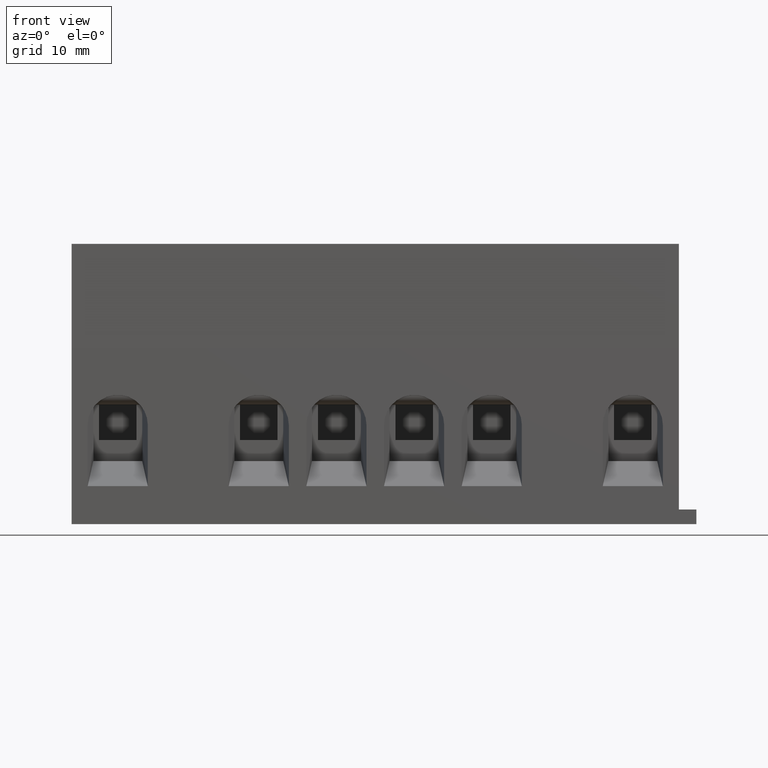
[diagram: clean part render]
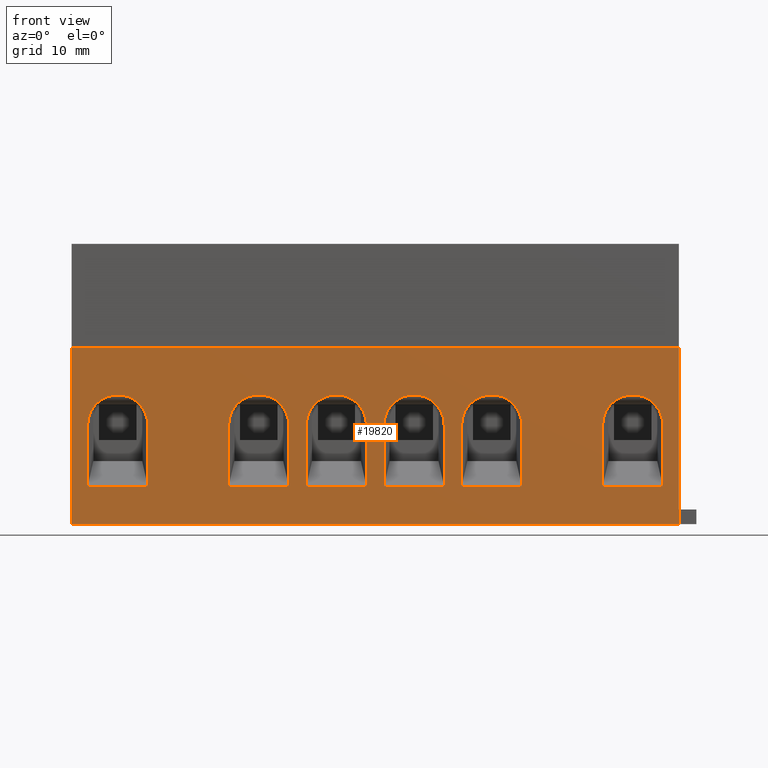
[diagram: same view with one face highlighted and labeled with its STEP entity id]
A machine part, front view. The second image highlights one B-rep face of the part: STEP entity #19820.
In plain terms, the highlighted planar face has unit normal (0, 1, 0).
Its self-contained STEP definition (entity closure, byte-faithful):
#10090=CARTESIAN_POINT('',(-110.632337741337,-187.476755845654,
-2.5371653489259E-7));
#10100=VERTEX_POINT('',#10090);
#10130=CARTESIAN_POINT('',(-113.207337741337,-187.476755845654,
-2.53716533116233E-7));
#10140=DIRECTION('',(0.,0.,1.));
#10150=DIRECTION('',(-1.,0.,0.));
#10160=AXIS2_PLACEMENT_3D('',#10130,#10140,#10150);
#10170=CIRCLE('',#10160,2.57499999999999);
#10180=CARTESIAN_POINT('',(-115.782337741337,-187.476755845654,
-2.53716529563519E-7));
#10190=VERTEX_POINT('',#10180);
#10200=EDGE_CURVE('',#10100,#10190,#10170,.T.);
#11400=CARTESIAN_POINT('',(-115.782337786074,-193.978083115857,
-2.53716528675341E-7));
#11410=DIRECTION('',(-5.00643972648559E-32,-1.,9.86076131526265E-32));
#11420=VECTOR('',#11410,1.);
#11430=LINE('',#11400,#11420);
#11440=CARTESIAN_POINT('',(-115.782337786074,-192.725760003181,
-2.53716528675341E-7));
#11450=VERTEX_POINT('',#11440);
#11460=EDGE_CURVE('',#10190,#11450,#11430,.T.);
#17130=CARTESIAN_POINT('',(-110.6323376966,-192.725759999409,
-2.53716534004411E-7));
#17140=VERTEX_POINT('',#17130);
#17170=CARTESIAN_POINT('',(-110.6323376966,-193.978083115857,
-2.53716534004411E-7));
#17180=DIRECTION('',(5.00643972648559E-32,-1.,9.86076131526265E-32));
#17190=VECTOR('',#17180,1.);
#17200=LINE('',#17170,#17190);
#17210=EDGE_CURVE('',#10100,#17140,#17200,.T.);
#17380=CARTESIAN_POINT('',(-117.157337741337,-192.725760003181,
-2.53716536668946E-7));
#17390=DIRECTION('',(1.,-3.31166725986915E-17,0.));
#17400=VECTOR('',#17390,1.);
#17410=LINE('',#17380,#17400);
#17420=EDGE_CURVE('',#11450,#17140,#17410,.T.);
#17620=CARTESIAN_POINT('',(-117.482337741337,-195.978083115857,
-2.5371653489259E-7));
#17630=DIRECTION('',(-0.,0.,1.));
#17640=DIRECTION('',(0.,-1.,0.));
#17650=AXIS2_PLACEMENT_3D('',#17620,#17630,#17640);
#17660=PLANE('',#17650);
#17670=CARTESIAN_POINT('',(-109.132337786074,-193.978083115857,
-2.53716534004411E-7));
#17680=DIRECTION('',(0.,1.,9.86076131526265E-32));
#17690=VECTOR('',#17680,1.);
#17700=LINE('',#17670,#17690);
#17710=CARTESIAN_POINT('',(-109.132337786074,-192.725760003181,
-2.53716536668946E-7));
#17720=VERTEX_POINT('',#17710);
#17730=CARTESIAN_POINT('',(-109.132337741337,-187.476755845654,
-2.5371653489259E-7));
#17740=VERTEX_POINT('',#17730);
#17750=EDGE_CURVE('',#17720,#17740,#17700,.T.);
#17760=ORIENTED_EDGE('',*,*,#17750,.F.);
#17770=CARTESIAN_POINT('',(-106.557337741337,-187.476755845654,
-2.53716533116233E-7));
#17780=DIRECTION('',(0.,0.,1.));
#17790=DIRECTION('',(-1.,0.,0.));
#17800=AXIS2_PLACEMENT_3D('',#17770,#17780,#17790);
#17810=CIRCLE('',#17800,2.57499999999999);
#17820=CARTESIAN_POINT('',(-103.982337741337,-187.476755845654,
-2.5371653489259E-7));
#17830=VERTEX_POINT('',#17820);
#17840=EDGE_CURVE('',#17830,#17740,#17810,.T.);
#17850=ORIENTED_EDGE('',*,*,#17840,.T.);
#17860=CARTESIAN_POINT('',(-103.9823376966,-193.978083115857,
-2.5371653489259E-7));
#17870=DIRECTION('',(0.,1.,0.));
#17880=VECTOR('',#17870,1.);
#17890=LINE('',#17860,#17880);
#17900=CARTESIAN_POINT('',(-103.9823376966,-192.725759999409,
-2.5371653489259E-7));
#17910=VERTEX_POINT('',#17900);
#17920=EDGE_CURVE('',#17910,#17830,#17890,.T.);
#17930=ORIENTED_EDGE('',*,*,#17920,.T.);
#17940=CARTESIAN_POINT('',(-110.507337741337,-192.725760003181,
-2.53716536668946E-7));
#17950=DIRECTION('',(1.,-3.31166725986915E-17,0.));
#17960=VECTOR('',#17950,1.);
#17970=LINE('',#17940,#17960);
#17980=EDGE_CURVE('',#17720,#17910,#17970,.T.);
#17990=ORIENTED_EDGE('',*,*,#17980,.T.);
#18000=EDGE_LOOP('',(#17990,#17930,#17850,#17760));
#18010=FACE_BOUND('',#18000,.T.);
#18020=CARTESIAN_POINT('',(-83.8823377413369,-193.978083115857,
1.4210854715202E-14));
#18030=DIRECTION('',(0.,1.,0.));
#18040=VECTOR('',#18030,1.);
#18050=LINE('',#18020,#18040);
#18060=CARTESIAN_POINT('',(-83.8823377413369,-195.978083115857,
-2.5371653489259E-7));
#18070=VERTEX_POINT('',#18060);
#18080=CARTESIAN_POINT('',(-83.8823377413369,-180.885783021568,
-3.86277676511781E-11));
#18090=VERTEX_POINT('',#18080);
#18100=EDGE_CURVE('',#18070,#18090,#18050,.T.);
#18110=ORIENTED_EDGE('',*,*,#18100,.F.);
#18120=CARTESIAN_POINT('',(-117.482337741337,-180.88578301714,
1.24344978758018E-14));
#18130=DIRECTION('',(1.,0.,0.));
#18140=VECTOR('',#18130,1.);
#18150=LINE('',#18120,#18140);
#18160=CARTESIAN_POINT('',(-135.882337741337,-180.88578301714,
-2.53716529563519E-7));
#18170=VERTEX_POINT('',#18160);
#18180=EDGE_CURVE('',#18170,#18090,#18150,.T.);
#18190=ORIENTED_EDGE('',*,*,#18180,.T.);
#18200=CARTESIAN_POINT('',(-135.882337741337,-193.978083115857,
1.95399252334028E-14));
#18210=DIRECTION('',(0.,1.,0.));
#18220=VECTOR('',#18210,1.);
#18230=LINE('',#18200,#18220);
#18240=CARTESIAN_POINT('',(-135.882337741337,-195.978083115857,
-2.53716529563519E-7));
#18250=VERTEX_POINT('',#18240);
#18260=EDGE_CURVE('',#18250,#18170,#18230,.T.);
#18270=ORIENTED_EDGE('',*,*,#18260,.T.);
#18280=CARTESIAN_POINT('',(-117.482337741337,-195.978083115857,
-2.5371653489259E-7));
#18290=DIRECTION('',(1.,0.,0.));
#18300=VECTOR('',#18290,1.);
#18310=LINE('',#18280,#18300);
#18320=EDGE_CURVE('',#18250,#18070,#18310,.T.);
#18330=ORIENTED_EDGE('',*,*,#18320,.F.);
#18340=EDGE_LOOP('',(#18330,#18270,#18190,#18110));
#18350=FACE_OUTER_BOUND('',#18340,.T.);
#18360=CARTESIAN_POINT('',(-87.832337741337,-187.476755845654,
-2.53716533116233E-7));
#18370=DIRECTION('',(0.,0.,1.));
#18380=DIRECTION('',(-1.,0.,0.));
#18390=AXIS2_PLACEMENT_3D('',#18360,#18370,#18380);
#18400=CIRCLE('',#18390,2.57499999999999);
#18410=CARTESIAN_POINT('',(-85.257337741337,-187.476755845654,
-2.5371653489259E-7));
#18420=VERTEX_POINT('',#18410);
#18430=CARTESIAN_POINT('',(-90.407337786074,-187.476755845654,
-2.53716534004411E-7));
#18440=VERTEX_POINT('',#18430);
#18450=EDGE_CURVE('',#18420,#18440,#18400,.T.);
#18460=ORIENTED_EDGE('',*,*,#18450,.T.);
#18470=CARTESIAN_POINT('',(-85.2573376965999,-182.978083115857,
-2.53716535780768E-7));
#18480=DIRECTION('',(0.,1.,0.));
#18490=VECTOR('',#18480,1.);
#18500=LINE('',#18470,#18490);
#18510=CARTESIAN_POINT('',(-85.2573376965999,-192.725760003181,
-2.53716534004411E-7));
#18520=VERTEX_POINT('',#18510);
#18530=EDGE_CURVE('',#18520,#18420,#18500,.T.);
#18540=ORIENTED_EDGE('',*,*,#18530,.T.);
#18550=CARTESIAN_POINT('',(-103.782337741337,-192.725760003181,
-2.53716536668946E-7));
#18560=DIRECTION('',(1.,-3.31166725986915E-17,0.));
#18570=VECTOR('',#18560,1.);
#18580=LINE('',#18550,#18570);
#18590=CARTESIAN_POINT('',(-90.407337786074,-192.725759801365,
-2.53716534004411E-7));
#18600=VERTEX_POINT('',#18590);
#18610=EDGE_CURVE('',#18600,#18520,#18580,.T.);
#18620=ORIENTED_EDGE('',*,*,#18610,.T.);
#18630=CARTESIAN_POINT('',(-90.407337786074,-182.978083115857,
-2.53716535780768E-7));
#18640=DIRECTION('',(0.,1.,0.));
#18650=VECTOR('',#18640,1.);
#18660=LINE('',#18630,#18650);
#18670=EDGE_CURVE('',#18600,#18440,#18660,.T.);
#18680=ORIENTED_EDGE('',*,*,#18670,.F.);
#18690=EDGE_LOOP('',(#18680,#18620,#18540,#18460));
#18700=FACE_BOUND('',#18690,.T.);
#18710=CARTESIAN_POINT('',(-97.3323376965999,-193.978083115857,
-2.53716529563519E-7));
#18720=DIRECTION('',(0.,1.,9.86076131526265E-32));
#18730=VECTOR('',#18720,1.);
#18740=LINE('',#18710,#18730);
#18750=CARTESIAN_POINT('',(-97.3323376965999,-192.725759999409,
-2.5371653489259E-7));
#18760=VERTEX_POINT('',#18750);
#18770=CARTESIAN_POINT('',(-97.332337741337,-187.476755845654,
-2.5371653489259E-7));
#18780=VERTEX_POINT('',#18770);
#18790=EDGE_CURVE('',#18760,#18780,#18740,.T.);
#18800=ORIENTED_EDGE('',*,*,#18790,.T.);
#18810=CARTESIAN_POINT('',(-103.857337741337,-192.725760003181,
-2.53716536668946E-7));
#18820=DIRECTION('',(1.,-3.31166725986915E-17,0.));
#18830=VECTOR('',#18820,1.);
#18840=LINE('',#18810,#18830);
#18850=CARTESIAN_POINT('',(-102.482337786074,-192.725760003181,
-2.53716536668946E-7));
#18860=VERTEX_POINT('',#18850);
#18870=EDGE_CURVE('',#18860,#18760,#18840,.T.);
#18880=ORIENTED_EDGE('',*,*,#18870,.T.);
#18890=CARTESIAN_POINT('',(-102.482337786074,-193.978083115857,
-2.53716524234449E-7));
#18900=DIRECTION('',(0.,1.,9.86076131526265E-32));
#18910=VECTOR('',#18900,1.);
#18920=LINE('',#18890,#18910);
#18930=CARTESIAN_POINT('',(-102.482337741337,-187.476755845654,
-2.5371653489259E-7));
#18940=VERTEX_POINT('',#18930);
#18950=EDGE_CURVE('',#18860,#18940,#18920,.T.);
#18960=ORIENTED_EDGE('',*,*,#18950,.F.);
#18970=CARTESIAN_POINT('',(-99.907337741337,-187.476755845654,
-2.53716533116233E-7));
#18980=DIRECTION('',(0.,0.,1.));
#18990=DIRECTION('',(-1.,0.,0.));
#19000=AXIS2_PLACEMENT_3D('',#18970,#18980,#18990);
#19010=CIRCLE('',#19000,2.57499999999999);
#19020=EDGE_CURVE('',#18780,#18940,#19010,.T.);
#19030=ORIENTED_EDGE('',*,*,#19020,.T.);
#19040=EDGE_LOOP('',(#19030,#18960,#18880,#18800));
#19050=FACE_BOUND('',#19040,.T.);
#19060=CARTESIAN_POINT('',(-134.507337786074,-182.978083115857,
-2.53716530451698E-7));
#19070=DIRECTION('',(0.,1.,0.));
#19080=VECTOR('',#19070,1.);
#19090=LINE('',#19060,#19080);
#19100=CARTESIAN_POINT('',(-134.507337786074,-192.725760003181,
-2.53716529563519E-7));
#19110=VERTEX_POINT('',#19100);
#19120=CARTESIAN_POINT('',(-134.507337741337,-187.476755845654,
-2.53716529563519E-7));
#19130=VERTEX_POINT('',#19120);
#19140=EDGE_CURVE('',#19110,#19130,#19090,.T.);
#19150=ORIENTED_EDGE('',*,*,#19140,.F.);
#19160=CARTESIAN_POINT('',(-131.932337741337,-187.476755845654,
-2.53716527787162E-7));
#19170=DIRECTION('',(0.,0.,1.));
#19180=DIRECTION('',(-1.,0.,0.));
#19190=AXIS2_PLACEMENT_3D('',#19160,#19170,#19180);
#19200=CIRCLE('',#19190,2.57499999999999);
#19210=CARTESIAN_POINT('',(-129.357337741337,-187.476755845654,
-2.53716529563519E-7));
#19220=VERTEX_POINT('',#19210);
#19230=EDGE_CURVE('',#19220,#19130,#19200,.T.);
#19240=ORIENTED_EDGE('',*,*,#19230,.T.);
#19250=CARTESIAN_POINT('',(-129.3573376966,-182.978083115857,
-2.53716530451698E-7));
#19260=DIRECTION('',(0.,1.,0.));
#19270=VECTOR('',#19260,1.);
#19280=LINE('',#19250,#19270);
#19290=CARTESIAN_POINT('',(-129.3573376966,-192.725760003181,
-2.53716528675341E-7));
#19300=VERTEX_POINT('',#19290);
#19310=EDGE_CURVE('',#19300,#19220,#19280,.T.);
#19320=ORIENTED_EDGE('',*,*,#19310,.T.);
#19330=CARTESIAN_POINT('',(-135.882337741337,-192.725760003181,
-2.53716531339876E-7));
#19340=DIRECTION('',(1.,-3.31166725986915E-17,0.));
#19350=VECTOR('',#19340,1.);
#19360=LINE('',#19330,#19350);
#19370=EDGE_CURVE('',#19110,#19300,#19360,.T.);
#19380=ORIENTED_EDGE('',*,*,#19370,.T.);
#19390=EDGE_LOOP('',(#19380,#19320,#19240,#19150));
#19400=FACE_BOUND('',#19390,.T.);
#19410=CARTESIAN_POINT('',(-119.857337741337,-187.476755845654,
-2.53716527787162E-7));
#19420=DIRECTION('',(0.,0.,1.));
#19430=DIRECTION('',(-1.,0.,0.));
#19440=AXIS2_PLACEMENT_3D('',#19410,#19420,#19430);
#19450=CIRCLE('',#19440,2.57499999999999);
#19460=CARTESIAN_POINT('',(-117.282337741337,-187.476755845654,
-2.53716529563519E-7));
#19470=VERTEX_POINT('',#19460);
#19480=CARTESIAN_POINT('',(-122.432337786074,-187.476755845654,
-2.53716528675341E-7));
#19490=VERTEX_POINT('',#19480);
#19500=EDGE_CURVE('',#19470,#19490,#19450,.T.);
#19510=ORIENTED_EDGE('',*,*,#19500,.T.);
#19520=CARTESIAN_POINT('',(-117.2823376966,-182.978083115857,
-2.53716530451698E-7));
#19530=DIRECTION('',(0.,1.,0.));
#19540=VECTOR('',#19530,1.);
#19550=LINE('',#19520,#19540);
#19560=CARTESIAN_POINT('',(-117.282337697436,-192.725760003181,
-2.53716529563519E-7));
#19570=VERTEX_POINT('',#19560);
#19580=EDGE_CURVE('',#19570,#19470,#19550,.T.);
#19590=ORIENTED_EDGE('',*,*,#19580,.T.);
#19600=CARTESIAN_POINT('',(-135.807337741337,-192.725760003181,
-2.53716531339876E-7));
#19610=DIRECTION('',(1.,-3.31166725986915E-17,0.));
#19620=VECTOR('',#19610,1.);
#19630=LINE('',#19600,#19620);
#19640=CARTESIAN_POINT('',(-122.432337786074,-192.725759992082,
-2.53716528675341E-7));
#19650=VERTEX_POINT('',#19640);
#19660=EDGE_CURVE('',#19650,#19570,#19630,.T.);
#19670=ORIENTED_EDGE('',*,*,#19660,.T.);
#19680=CARTESIAN_POINT('',(-122.432337786074,-182.978083115857,
-2.53716530451698E-7));
#19690=DIRECTION('',(0.,1.,0.));
#19700=VECTOR('',#19690,1.);
#19710=LINE('',#19680,#19700);
#19720=EDGE_CURVE('',#19650,#19490,#19710,.T.);
#19730=ORIENTED_EDGE('',*,*,#19720,.F.);
#19740=EDGE_LOOP('',(#19730,#19670,#19590,#19510));
#19750=FACE_BOUND('',#19740,.T.);
#19760=ORIENTED_EDGE('',*,*,#11460,.T.);
#19770=ORIENTED_EDGE('',*,*,#10200,.T.);
#19780=ORIENTED_EDGE('',*,*,#17210,.F.);
#19790=ORIENTED_EDGE('',*,*,#17420,.T.);
#19800=EDGE_LOOP('',(#19790,#19780,#19770,#19760));
#19810=FACE_BOUND('',#19800,.T.);
#19820=ADVANCED_FACE('',(#18010,#18350,#18700,#19050,#19400,#19750,
#19810),#17660,.F.);